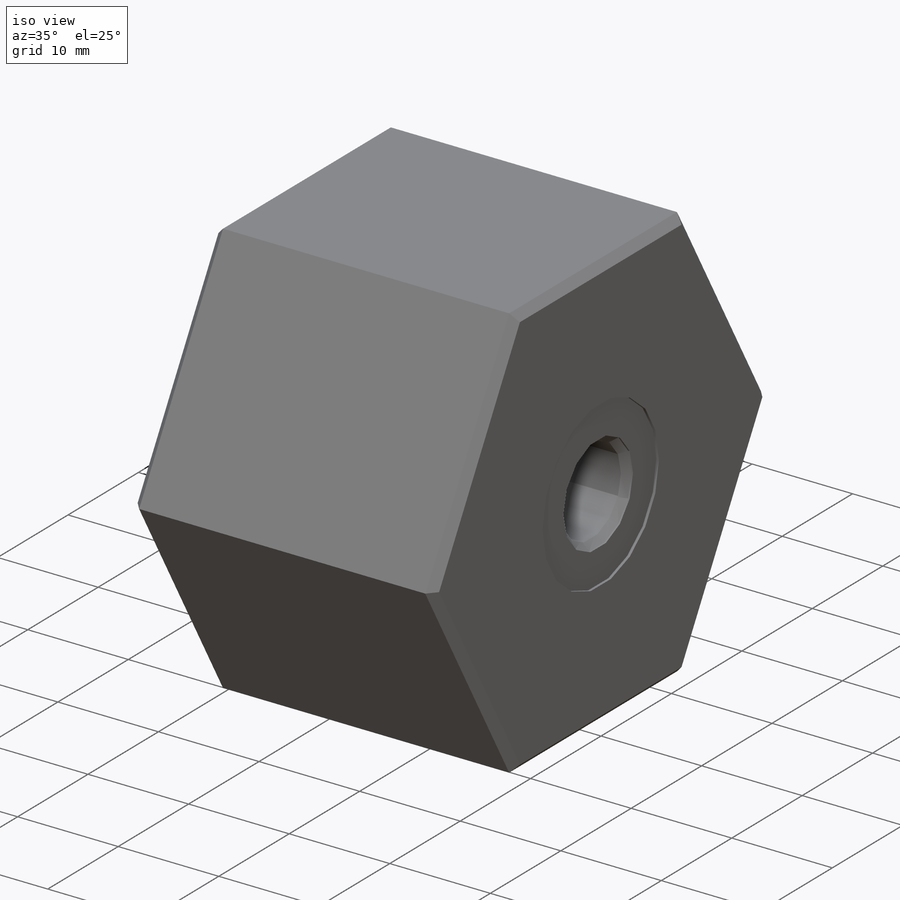
[diagram: iso view]
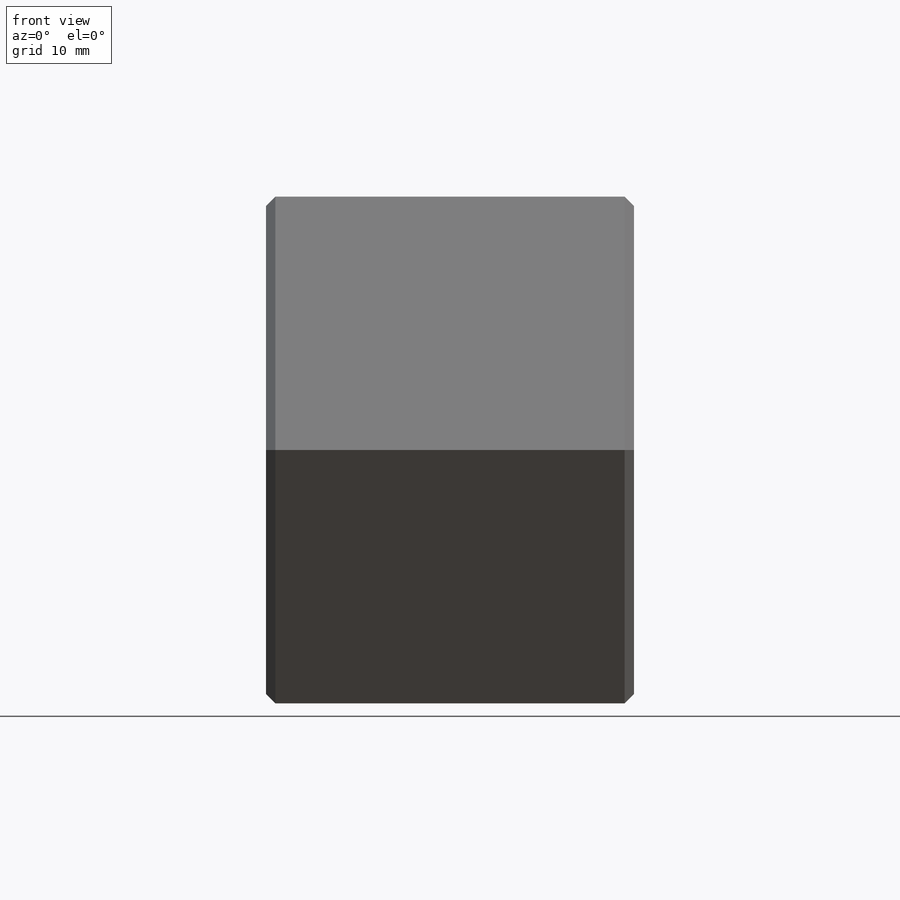
[diagram: front view]
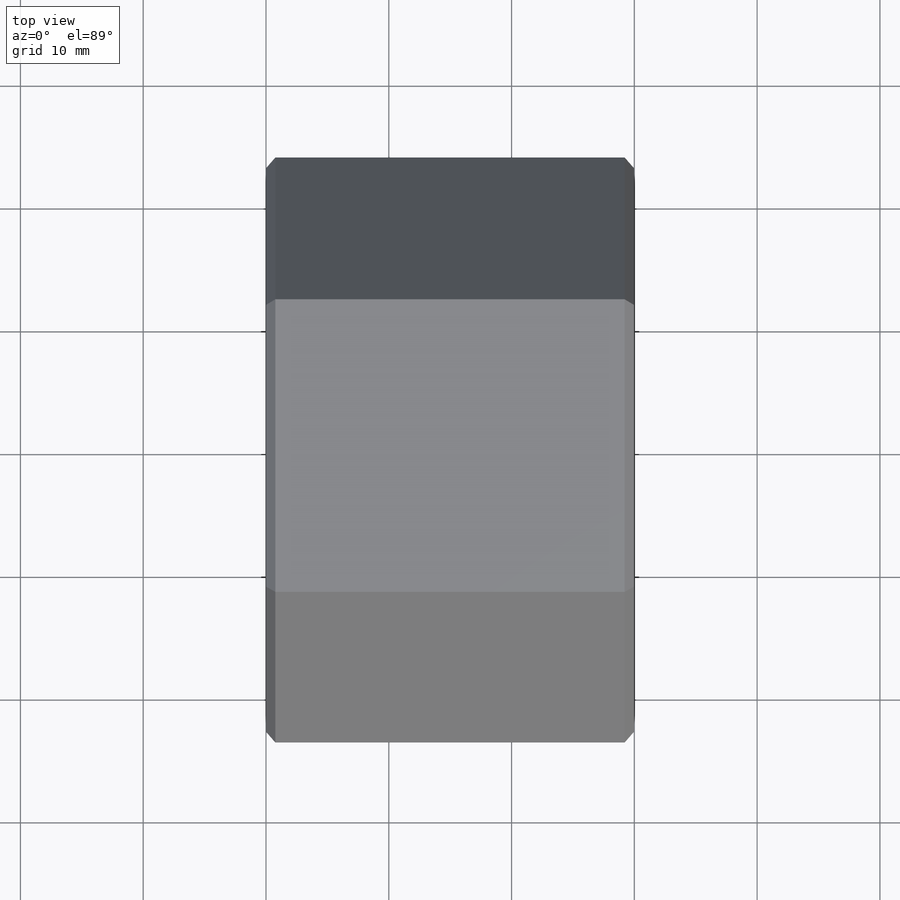
[diagram: top view]
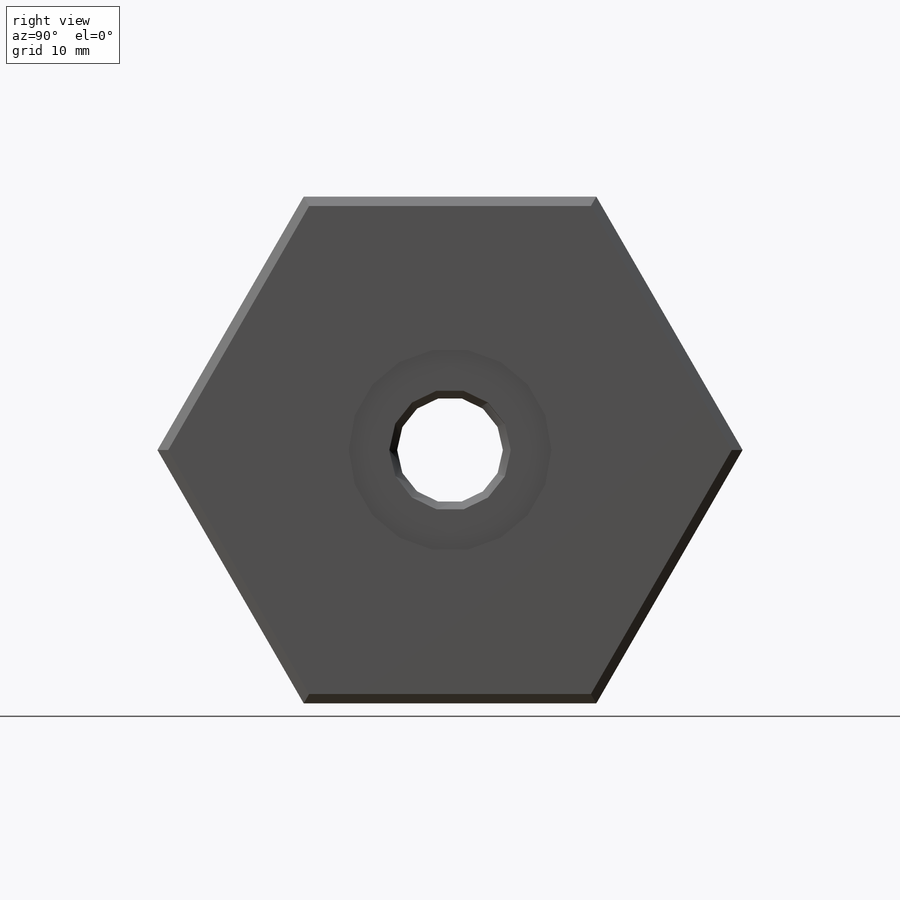
[diagram: right view]
SOLIDWORKS PART (.sldprt)
format: sldprt  version: not decoded by parser v0  size: 208,896 bytes
history: native  units: mm
features: chamfer x3, sketch x2, material x1, extrude x1, cut_revolve x1, fillet x1 (+13 scaffold rows collapsed)
feature tree (22):
  scaffold x13  (default folders/planes/origin — collapsed)
  material  "Alloy Steel"
  sketch  "Sketch1"  dims[D1=41.275mm]
  extrude  "Extrude1"  Depth=29.972mm
  sketch  "Sketch2"  dims[c1.D1=33.5026mm c1.D2=16.4592mm c1.D3=29.8704mm c1.D4=0.254mm c1.D5=16.51mm c1.D6=~1.356386mm c2.D6=45.0deg c2.D7=0.127mm c2.D8=9.906mm c2.D9=8.6106mm c2.D10=~1.632957mm c3.D10=45.0deg c3.D11=10.1346mm c3.D12=21.4884mm c3.D8=0.127mm c4.D8=12.0deg c4.D7=0.127mm c4.D13=9.906mm]
  cut_revolve  "Cut-Revolve1"  Angle=360deg
  chamfer  "Chamfer1"  Distance=0.508mm Angle=45deg
  chamfer  "Chamfer3"  Distance=0.762mm Angle=45deg
  chamfer  "Chamfer4"  Distance=0.762mm Angle=45deg
  fillet  "Fillet1"  Radius=0.508mm
decode coverage: 8 of 8 modeling features carry decoded parameters
note: ~ marks probable driven/reference dimensions
note: suppression state not decoded; provenance and decode notes live in map.json
